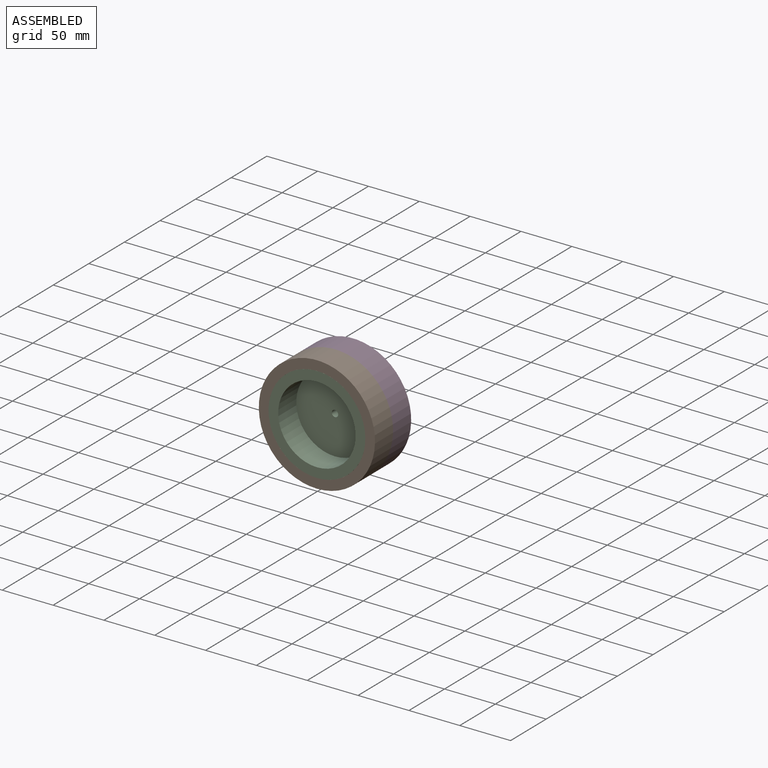
[diagram: assembled view]
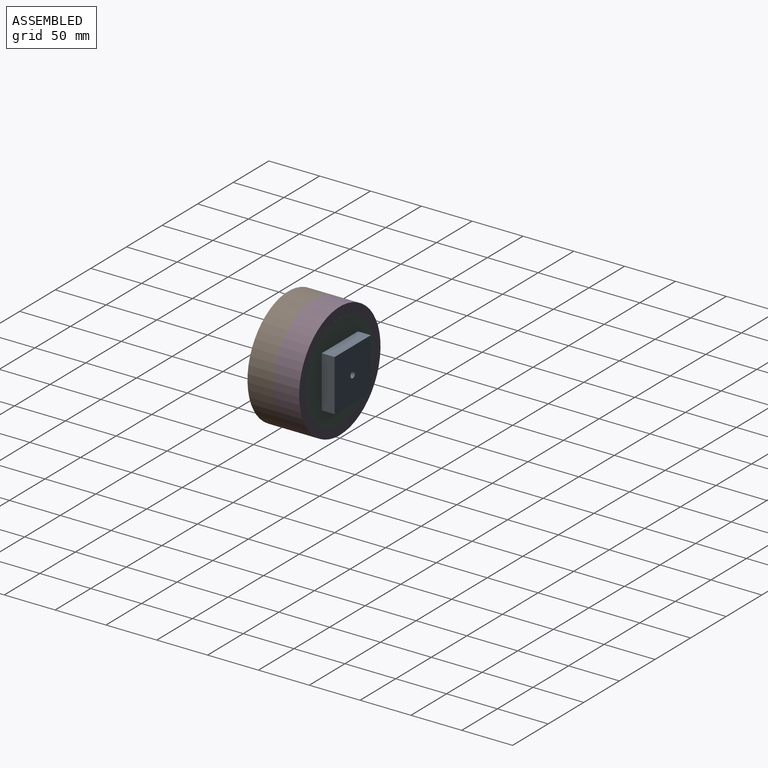
[diagram: assembled view, second angle]
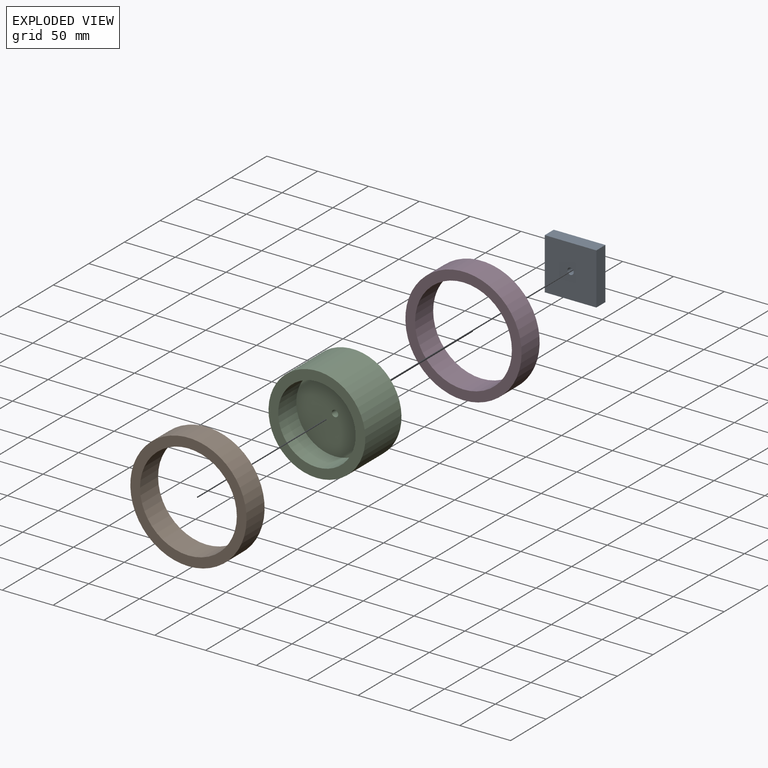
[diagram: exploded view]
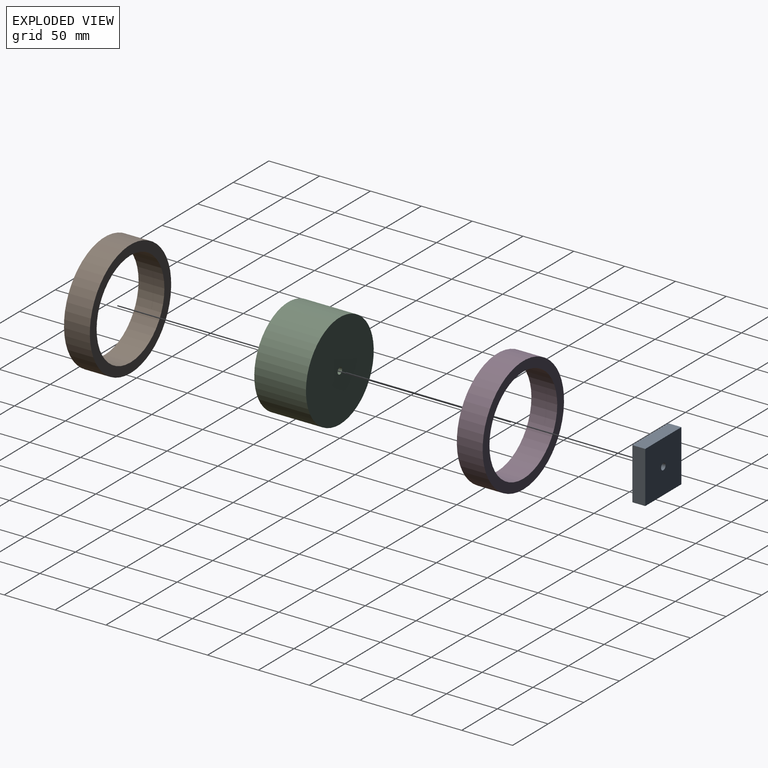
[diagram: exploded view, second angle]
ASSEMBLY  parts=4 mates=3
PART A: 7 faces, bbox 50.8x12.7x50.8 mm
  f0: plane 50.8x12.7mm, normal (1,0,0), area 645.2mm2, adj f1,f3,f4,f5
  f1: plane 50.8x12.7mm, normal (0,0,1), area 645.2mm2, adj f0,f2,f4,f5
  f2: plane 50.8x12.7mm, normal (-1,0,0), area 645.2mm2, adj f1,f3,f4,f5
  f3: plane 50.8x12.7mm, normal (0,0,-1), area 645.2mm2, adj f0,f2,f4,f5
  f4: plane 50.8x50.8mm, normal (0,-1,0), area 2549mm2, adj f0,f1,f2,f3,f6
  f5: plane 50.8x50.8mm, normal (0,1,0), area 2549mm2, adj f0,f1,f2,f3,f6
  f6: cylinder r=3.17mm len=12.7mm, axis (0,-1,0), area 253.4mm2, adj f4,f5
PART B: 4 faces, bbox 114.3x25.4x114.3 mm
  f0: cylinder r=47.62mm len=95.25mm, axis (0,1,0), area 7600.6mm2, adj f2,f3
  f1: cylinder r=57.15mm len=114.3mm, axis (0,1,0), area 9120.7mm2, adj f2,f3
  f2: plane 114.3x114.3mm, normal (0,-1,0), area 3135.3mm2, adj f0,f1
  f3: plane 114.3x114.3mm, normal (0,1,0), area 3135.3mm2, adj f0,f1
PART C: 6 faces, bbox 95.3x50.8x95.3 mm
  f0: cylinder r=3.17mm len=25.4mm, axis (0,1,0), area 506.7mm2, adj f3,f5
  f1: cylinder r=47.62mm len=95.25mm, axis (0,1,0), area 15201.2mm2, adj f2,f3
  f2: plane 95.25x95.25mm, normal (0,-1,0), area 2565.2mm2, adj f1,f4
  f3: plane 95.25x95.25mm, normal (0,1,0), area 7093.9mm2, adj f0,f1
  f4: cylinder r=38.1mm len=76.2mm, axis (0,-1,0), area 6080.5mm2, adj f2,f5
  f5: plane 76.2x76.2mm, normal (0,-1,0), area 4528.7mm2, adj f0,f4
PART D: same geometry as B
PLACE A t=(0,12.7,0)mm
PLACE B t=(0,-25.4,0)mm
PLACE C at identity
PLACE D at identity
MATE fastened C.f1 <-> A.f6  axis (0,1,0) through (0,0,0)mm
MATE fastened C.f4 <-> B.f0  axis (0,-1,0) through (0,-50.8,0)mm
MATE fastened D.f0 <-> C.f1  axis (0,1,0) through (0,0,0)mm
